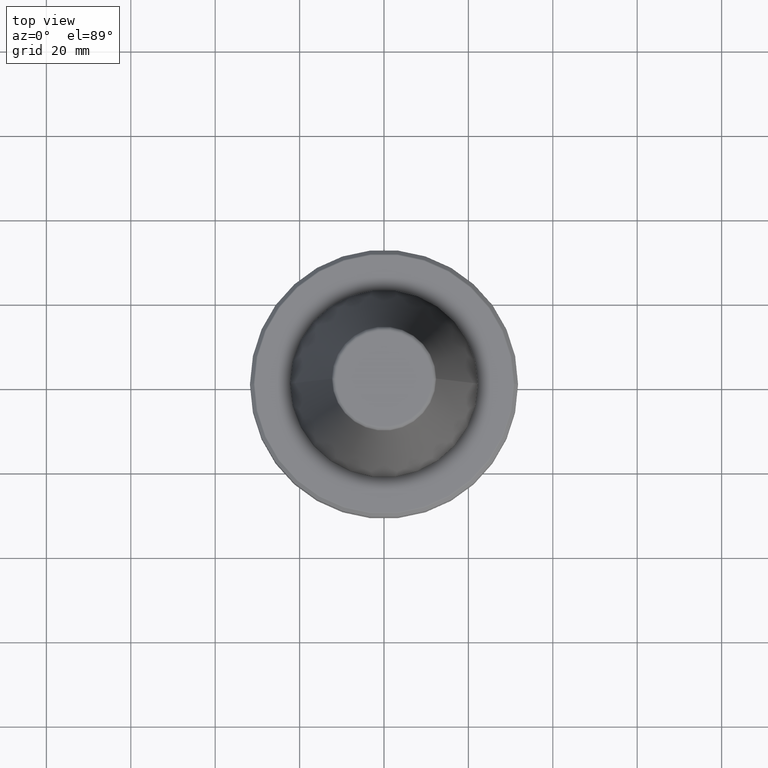
[diagram: clean part render]
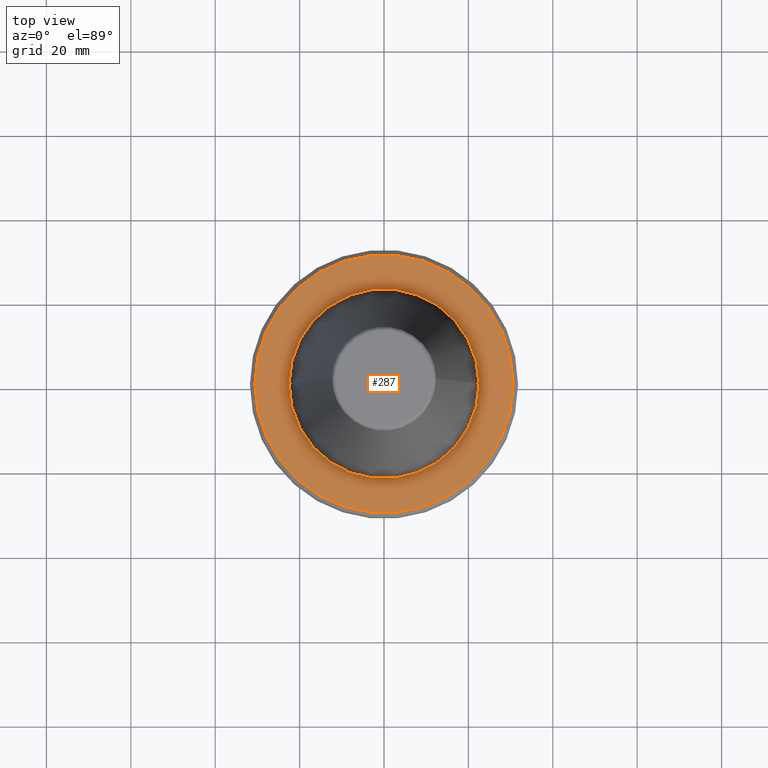
[diagram: same view with one face highlighted and labeled with its STEP entity id]
A machine part, top view. The second image highlights one B-rep face of the part: STEP entity #287.
In plain terms, the highlighted planar face has unit normal (0, -0, 1).
Its self-contained STEP definition (entity closure, byte-faithful):
#3 = DIRECTION ( 'NONE',  ( -0.0000000000000000000, -0.0000000000000000000, 1.000000000000000000 ) ) ;
#5 = CIRCLE ( 'NONE', #1025, 30.58431457505076200 ) ;
#9 = VERTEX_POINT ( 'NONE', #174 ) ;
#37 = DIRECTION ( 'NONE',  ( 1.000000000000000000, 0.0000000000000000000, 0.0000000000000000000 ) ) ;
#67 = EDGE_CURVE ( 'NONE', #569, #9, #5, .T. ) ;
#99 = FACE_BOUND ( 'NONE', #440, .T. ) ;
#132 = VERTEX_POINT ( 'NONE', #878 ) ;
#138 = EDGE_CURVE ( 'NONE', #132, #505, #877, .T. ) ;
#174 = CARTESIAN_POINT ( 'NONE',  ( -30.58431457505076200, 3.762817415969875600E-015, -3.199999999999994400 ) ) ;
#206 = AXIS2_PLACEMENT_3D ( 'NONE', #331, #717, #37 ) ;
#207 = DIRECTION ( 'NONE',  ( 1.000000000000000000, 0.0000000000000000000, 0.0000000000000000000 ) ) ;
#232 = EDGE_CURVE ( 'NONE', #505, #132, #1117, .T. ) ;
#253 = DIRECTION ( 'NONE',  ( -0.0000000000000000000, -0.0000000000000000000, 1.000000000000000000 ) ) ;
#255 = CARTESIAN_POINT ( 'NONE',  ( -22.50000000000000000, 2.755455298081544800E-015, -3.199999999999996600 ) ) ;
#287 = ADVANCED_FACE ( 'NONE', ( #806, #99 ), #336, .T. ) ;
#320 = CARTESIAN_POINT ( 'NONE',  ( 0.0000000000000000000, 0.0000000000000000000, -3.199999999999994400 ) ) ;
#331 = CARTESIAN_POINT ( 'NONE',  ( 0.0000000000000000000, 0.0000000000000000000, -3.200000000000000200 ) ) ;
#336 = PLANE ( 'NONE',  #206 ) ;
#415 = DIRECTION ( 'NONE',  ( -0.0000000000000000000, -0.0000000000000000000, 1.000000000000000000 ) ) ;
#426 = DIRECTION ( 'NONE',  ( -0.0000000000000000000, -0.0000000000000000000, 1.000000000000000000 ) ) ;
#428 = EDGE_CURVE ( 'NONE', #9, #569, #1156, .T. ) ;
#440 = EDGE_LOOP ( 'NONE', ( #962, #747 ) ) ;
#499 = CARTESIAN_POINT ( 'NONE',  ( 0.0000000000000000000, 0.0000000000000000000, -3.199999999999994400 ) ) ;
#505 = VERTEX_POINT ( 'NONE', #255 ) ;
#506 = CARTESIAN_POINT ( 'NONE',  ( 0.0000000000000000000, 0.0000000000000000000, -3.199999999999994400 ) ) ;
#569 = VERTEX_POINT ( 'NONE', #1259 ) ;
#603 = ORIENTED_EDGE ( 'NONE', *, *, #67, .T. ) ;
#655 = AXIS2_PLACEMENT_3D ( 'NONE', #824, #253, #1010 ) ;
#708 = ORIENTED_EDGE ( 'NONE', *, *, #428, .T. ) ;
#717 = DIRECTION ( 'NONE',  ( 0.0000000000000000000, -0.0000000000000000000, 1.000000000000000000 ) ) ;
#734 = AXIS2_PLACEMENT_3D ( 'NONE', #499, #3, #207 ) ;
#747 = ORIENTED_EDGE ( 'NONE', *, *, #232, .F. ) ;
#806 = FACE_OUTER_BOUND ( 'NONE', #900, .T. ) ;
#824 = CARTESIAN_POINT ( 'NONE',  ( 0.0000000000000000000, 0.0000000000000000000, -3.199999999999994400 ) ) ;
#830 = AXIS2_PLACEMENT_3D ( 'NONE', #320, #415, #979 ) ;
#877 = CIRCLE ( 'NONE', #830, 22.50000000000000000 ) ;
#878 = CARTESIAN_POINT ( 'NONE',  ( 22.50000000000000000, 0.0000000000000000000, -3.199999999999996600 ) ) ;
#900 = EDGE_LOOP ( 'NONE', ( #603, #708 ) ) ;
#962 = ORIENTED_EDGE ( 'NONE', *, *, #138, .F. ) ;
#975 = DIRECTION ( 'NONE',  ( 1.000000000000000000, 0.0000000000000000000, 0.0000000000000000000 ) ) ;
#979 = DIRECTION ( 'NONE',  ( 1.000000000000000000, 0.0000000000000000000, 0.0000000000000000000 ) ) ;
#1010 = DIRECTION ( 'NONE',  ( 1.000000000000000000, 0.0000000000000000000, 0.0000000000000000000 ) ) ;
#1025 = AXIS2_PLACEMENT_3D ( 'NONE', #506, #426, #975 ) ;
#1117 = CIRCLE ( 'NONE', #655, 22.50000000000000000 ) ;
#1156 = CIRCLE ( 'NONE', #734, 30.58431457505076200 ) ;
#1259 = CARTESIAN_POINT ( 'NONE',  ( 30.58431457505076200, 0.0000000000000000000, -3.199999999999994400 ) ) ;